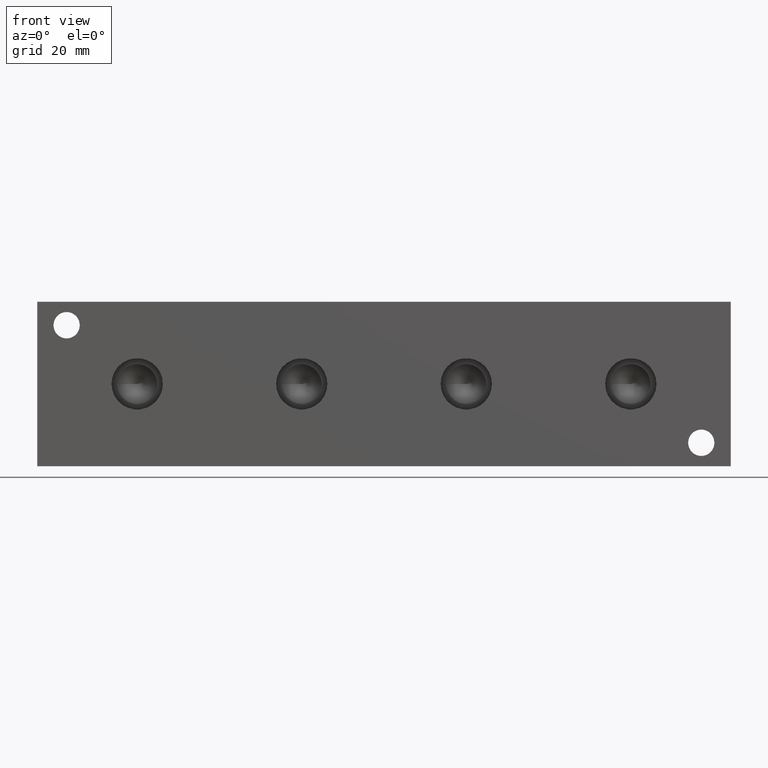
[diagram: clean part render]
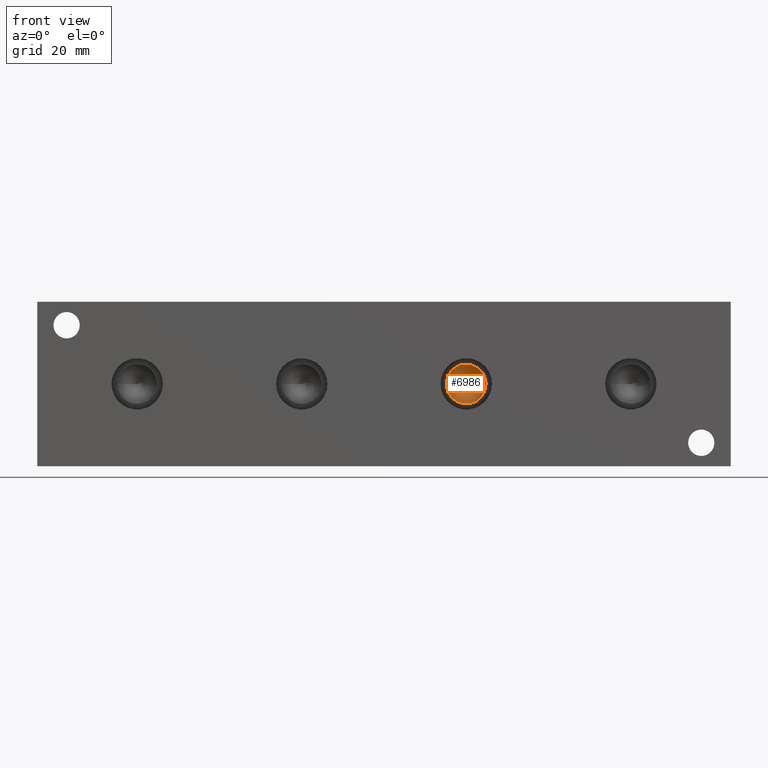
[diagram: same view with one face highlighted and labeled with its STEP entity id]
A machine part, front view. The second image highlights one B-rep face of the part: STEP entity #6986.
In plain terms, the highlighted conical surface has half-angle 60 deg.
Its self-contained STEP definition (entity closure, byte-faithful):
#58=CONICAL_SURFACE('',#7343,2.6797,1.0471975511966);
#114=CIRCLE('',#7344,5.3594);
#115=CIRCLE('',#7345,5.3594);
#782=FACE_OUTER_BOUND('',#1175,.T.);
#1175=EDGE_LOOP('',(#6125,#6126,#6127,#6128));
#1918=LINE('',#11600,#2633);
#2633=VECTOR('',#8728,2.6797);
#3391=VERTEX_POINT('',#11596);
#3392=VERTEX_POINT('',#11597);
#3393=VERTEX_POINT('',#11599);
#4326=EDGE_CURVE('',#3391,#3392,#114,.T.);
#4327=EDGE_CURVE('',#3392,#3393,#1918,.T.);
#4328=EDGE_CURVE('',#3392,#3391,#115,.T.);
#6125=ORIENTED_EDGE('',*,*,#4326,.T.);
#6126=ORIENTED_EDGE('',*,*,#4327,.T.);
#6127=ORIENTED_EDGE('',*,*,#4327,.F.);
#6128=ORIENTED_EDGE('',*,*,#4328,.T.);
#6986=ADVANCED_FACE('',(#782),#58,.F.);
#7343=AXIS2_PLACEMENT_3D('',#11595,#8724,#8725);
#7344=AXIS2_PLACEMENT_3D('',#11598,#8726,#8727);
#7345=AXIS2_PLACEMENT_3D('',#11601,#8729,#8730);
#8724=DIRECTION('center_axis',(0.,-1.,0.));
#8725=DIRECTION('ref_axis',(1.,0.,0.));
#8726=DIRECTION('center_axis',(0.,-1.,0.));
#8727=DIRECTION('ref_axis',(1.,0.,0.));
#8728=DIRECTION('',(0.866025403784439,0.5,1.06057523872491E-16));
#8729=DIRECTION('center_axis',(0.,-1.,0.));
#8730=DIRECTION('ref_axis',(1.,0.,0.));
#11595=CARTESIAN_POINT('Origin',(115.8748,13.2611555163474,22.225));
#11596=CARTESIAN_POINT('',(121.2342,11.71403,22.225));
#11597=CARTESIAN_POINT('',(110.5154,11.71403,22.225));
#11598=CARTESIAN_POINT('Origin',(115.8748,11.71403,22.225));
#11599=CARTESIAN_POINT('',(115.8748,14.8082810326949,22.225));
#11600=CARTESIAN_POINT('',(113.1951,13.2611555163474,22.225));
#11601=CARTESIAN_POINT('Origin',(115.8748,11.71403,22.225));